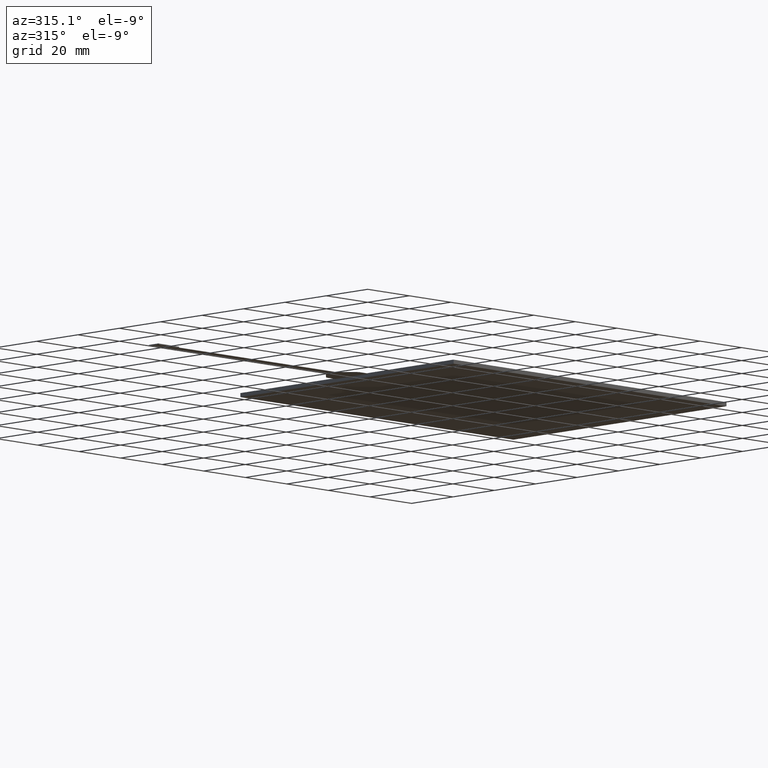
[diagram: clean part render]
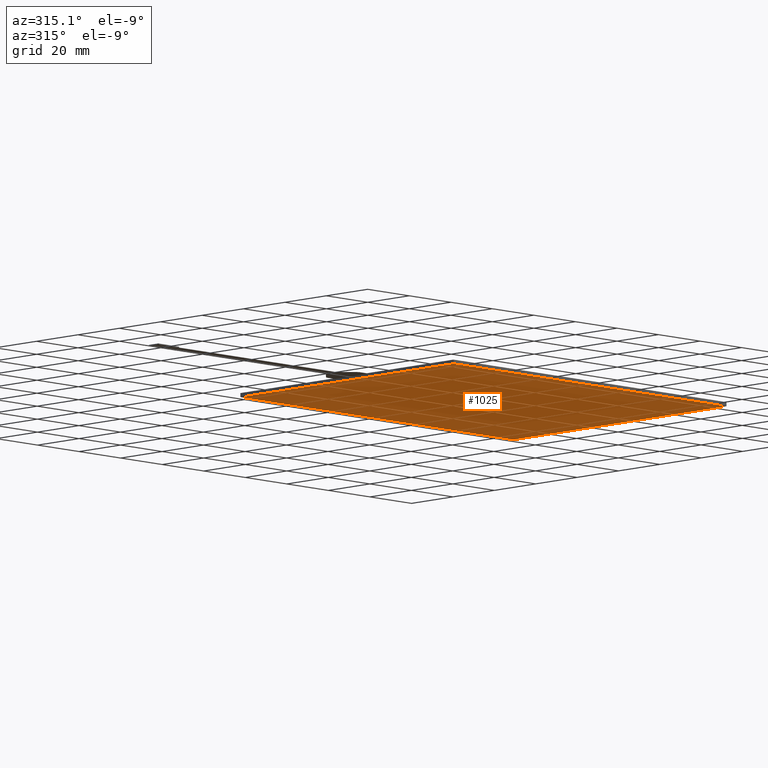
[diagram: same view with one face highlighted and labeled with its STEP entity id]
A machine part, auxiliary view. The second image highlights one B-rep face of the part: STEP entity #1025.
In plain terms, the highlighted planar face has unit normal (0, 0, -1).
Its self-contained STEP definition (entity closure, byte-faithful):
#93=PLANE('',#1108);
#144=FACE_OUTER_BOUND('',#198,.T.);
#198=EDGE_LOOP('',(#965,#966,#967,#968));
#318=LINE('',#1631,#444);
#320=LINE('',#1635,#446);
#322=LINE('',#1639,#448);
#324=LINE('',#1642,#450);
#444=VECTOR('',#1346,10.);
#446=VECTOR('',#1350,10.);
#448=VECTOR('',#1354,10.);
#450=VECTOR('',#1358,10.);
#551=VERTEX_POINT('',#1628);
#552=VERTEX_POINT('',#1630);
#553=VERTEX_POINT('',#1634);
#554=VERTEX_POINT('',#1638);
#686=EDGE_CURVE('',#552,#551,#318,.T.);
#688=EDGE_CURVE('',#553,#552,#320,.T.);
#690=EDGE_CURVE('',#554,#553,#322,.T.);
#692=EDGE_CURVE('',#551,#554,#324,.T.);
#965=ORIENTED_EDGE('',*,*,#692,.T.);
#966=ORIENTED_EDGE('',*,*,#690,.T.);
#967=ORIENTED_EDGE('',*,*,#688,.T.);
#968=ORIENTED_EDGE('',*,*,#686,.T.);
#1025=ADVANCED_FACE('',(#144),#93,.T.);
#1108=AXIS2_PLACEMENT_3D('',#1644,#1361,#1362);
#1346=DIRECTION('',(-1.72461829067985E-16,1.,0.));
#1350=DIRECTION('',(-1.,-6.75934870395833E-17,0.));
#1354=DIRECTION('',(8.62309145339927E-17,-1.,0.));
#1358=DIRECTION('',(1.,0.,0.));
#1361=DIRECTION('center_axis',(0.,0.,-1.));
#1362=DIRECTION('ref_axis',(-1.,0.,0.));
#1628=CARTESIAN_POINT('',(-68.1,53.95,-1.4));
#1630=CARTESIAN_POINT('',(-68.1,-49.05,-1.4));
#1631=CARTESIAN_POINT('',(-68.1,53.95,-1.4));
#1634=CARTESIAN_POINT('',(63.3,-49.05,-1.4));
#1635=CARTESIAN_POINT('',(-68.1,-49.05,-1.4));
#1638=CARTESIAN_POINT('',(63.3,53.95,-1.4));
#1639=CARTESIAN_POINT('',(63.3,-49.05,-1.4));
#1642=CARTESIAN_POINT('',(63.3,53.95,-1.4));
#1644=CARTESIAN_POINT('Origin',(-2.39999999999998,2.45000000000003,-1.4));